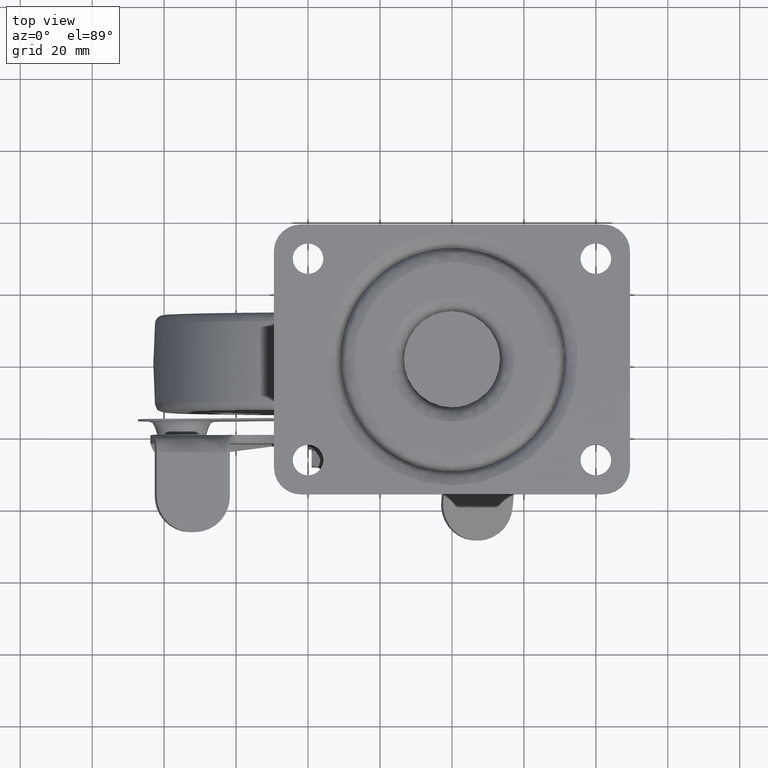
[diagram: clean part render]
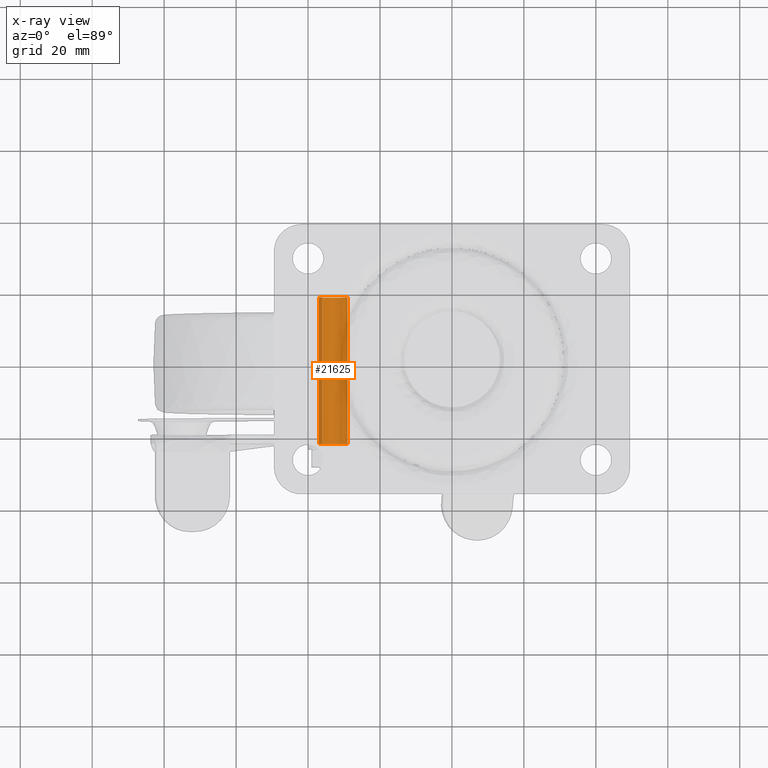
[diagram: x-ray — body ghosted, one internal face saturated and labeled with its STEP entity id]
A machine part, top view, then the same camera in x-ray: the body is ghosted and one INTERNAL B-rep face — a face not visible from any outside direction — is saturated and labeled: STEP entity #21625.
In plain terms, the highlighted face is a freeform B-spline surface patch.
Its self-contained STEP definition (entity closure, byte-faithful):
#21487=CARTESIAN_POINT('',(-30.417264588510378,-23.317933725000014,-69.946121983881184));
#21488=CARTESIAN_POINT('',(-30.329875903323774,-23.317933725000003,-70.020026941857267));
#21489=CARTESIAN_POINT('',(-30.246857051800770,-23.317933725000000,-70.098808890321948));
#21490=CARTESIAN_POINT('',(-27.346084942122630,-23.317933724999996,-72.851538838521265));
#21491=CARTESIAN_POINT('',(-30.098814890321950,-23.317933725000000,-75.752310948199408));
#21492=CARTESIAN_POINT('',(-32.851544838521278,-23.317933724999996,-78.653083057877552));
#21493=CARTESIAN_POINT('',(-35.752316948199422,-23.317933725000000,-75.900353109678235));
#21494=CARTESIAN_POINT('',(-38.653089057877551,-23.317933724999996,-73.147623161478919));
#21495=CARTESIAN_POINT('',(-35.900359109678227,-23.317933725000000,-70.246851051800775));
#21496=CARTESIAN_POINT('',(-30.417264588510378,19.460604993125003,-69.946121983881184));
#21497=CARTESIAN_POINT('',(-30.329875903323774,19.460604993125003,-70.020026941857267));
#21498=CARTESIAN_POINT('',(-30.246857051800770,19.460604993124999,-70.098808890321948));
#21499=CARTESIAN_POINT('',(-27.346084942122630,19.460604993125006,-72.851538838521265));
#21500=CARTESIAN_POINT('',(-30.098814890321950,19.460604993124999,-75.752310948199408));
#21501=CARTESIAN_POINT('',(-32.851544838521278,19.460604993125006,-78.653083057877552));
#21502=CARTESIAN_POINT('',(-35.752316948199422,19.460604993124999,-75.900353109678235));
#21503=CARTESIAN_POINT('',(-38.653089057877551,19.460604993125006,-73.147623161478919));
#21504=CARTESIAN_POINT('',(-35.900359109678227,19.460604993124999,-70.246851051800775));
#21512=(BOUNDED_SURFACE()B_SPLINE_SURFACE(2,1,((#21487,#21496),(#21488,#21497),(#21489,#21498),(#21490,#21499),(#21491,#21500),(#21492,#21501),(#21493,#21502),(#21494,#21503),(#21495,#21504)),.UNSPECIFIED.,.F.,.F.,.U.)B_SPLINE_SURFACE_WITH_KNOTS((3,2,2,2,3),(2,2),(0.0,0.265030405748802,6.890790549468830,13.516550693188860,20.142310836908891),(0.0,42.778538718125013),.UNSPECIFIED.)GEOMETRIC_REPRESENTATION_ITEM()RATIONAL_B_SPLINE_SURFACE(((0.977505800795127,0.977505800795127),(0.988284271247462,0.988284271247462),(1.0,1.0),(0.707106781186548,0.707106781186548),(1.0,1.0),(0.707106781186548,0.707106781186548),(1.0,1.0),(0.707106781186548,0.707106781186548),(1.0,1.0)))REPRESENTATION_ITEM('')SURFACE());
#21513=CARTESIAN_POINT('',(-30.417264268125951,18.417226000000021,-69.946122231132989));
#21514=VERTEX_POINT('',#21513);
#21515=CARTESIAN_POINT('',(-29.000587000000099,18.417225999999999,-72.999580926600515));
#21516=VERTEX_POINT('',#21515);
#21517=CARTESIAN_POINT('',(-30.417264268125951,18.417226000000021,-69.946122231132989));
#21518=CARTESIAN_POINT('',(-30.057760184075612,18.417225999999999,-70.249691695694850));
#21519=CARTESIAN_POINT('',(-29.518552387501320,18.417226000000049,-70.900822772283405));
#21520=CARTESIAN_POINT('',(-29.085013793036222,18.417225999999971,-71.986254547673923));
#21521=CARTESIAN_POINT('',(-29.000527495622901,18.417226000000031,-72.673859180990149));
#21522=CARTESIAN_POINT('',(-29.000587000000099,18.417225999999999,-72.999580926600515));
#21523=B_SPLINE_CURVE_WITH_KNOTS('',3,(#21517,#21518,#21519,#21520,#21521,#21522),.UNSPECIFIED.,.F.,.U.,(4,1,1,4),(0.000000222623391,1.411525781459067,2.497251290448031,3.474443897951952),.UNSPECIFIED.);
#21524=EDGE_CURVE('',#21514,#21516,#21523,.T.);
#21525=ORIENTED_EDGE('',*,*,#21524,.F.);
#21526=CARTESIAN_POINT('',(-30.417264271936791,-22.300003000000000,-69.946122227910152));
#21527=VERTEX_POINT('',#21526);
#21528=CARTESIAN_POINT('',(-30.417264271936791,-22.300003000000000,-69.946122227910152));
#21529=CARTESIAN_POINT('',(-30.417264268125951,18.417226000000021,-69.946122231132989));
#21530=QUASI_UNIFORM_CURVE('',1,(#21528,#21529),.UNSPECIFIED.,.F.,.U.);
#21531=EDGE_CURVE('',#21527,#21514,#21530,.T.);
#21532=ORIENTED_EDGE('',*,*,#21531,.F.);
#21533=CARTESIAN_POINT('',(-29.000587000000099,-22.300003000000000,-72.999580926600515));
#21534=VERTEX_POINT('',#21533);
#21535=CARTESIAN_POINT('',(-30.417264271936791,-22.300003000000000,-69.946122227910152));
#21536=CARTESIAN_POINT('',(-30.140853926787209,-22.300003000000022,-70.179755174024663));
#21537=CARTESIAN_POINT('',(-29.603157191472761,-22.300003000000000,-70.776963587714121));
#21538=CARTESIAN_POINT('',(-29.109215637694820,-22.300002999999940,-71.841425550868948));
#21539=CARTESIAN_POINT('',(-29.000505977299969,-22.300003000000100,-72.637668970365709));
#21540=CARTESIAN_POINT('',(-29.000587000000099,-22.300003000000000,-72.999580926600515));
#21541=B_SPLINE_CURVE_WITH_KNOTS('',3,(#21535,#21536,#21537,#21538,#21539,#21540),.UNSPECIFIED.,.F.,.U.,(4,1,1,4),(0.000000222624063,1.085781902374082,2.388662223198729,3.474443902943318),.UNSPECIFIED.);
#21542=EDGE_CURVE('',#21527,#21534,#21541,.T.);
#21543=ORIENTED_EDGE('',*,*,#21542,.T.);
#21544=CARTESIAN_POINT('',(-32.999587000000091,-22.300003000000000,-76.998581000000087));
#21545=VERTEX_POINT('',#21544);
#21546=CARTESIAN_POINT('',(-29.000587000000099,-22.300003000000000,-72.999580926600515));
#21547=CARTESIAN_POINT('',(-28.999828188430719,-22.300003000000011,-73.555915375144579));
#21548=CARTESIAN_POINT('',(-29.181053460442051,-22.300002999999990,-74.405915648102706));
#21549=CARTESIAN_POINT('',(-29.728211394747291,-22.300003000000011,-75.344324501500026));
#21550=CARTESIAN_POINT('',(-30.315456639275460,-22.300002999999968,-76.008569211922421));
#21551=CARTESIAN_POINT('',(-31.064623456210018,-22.300003000000121,-76.550157500952835));
#21552=CARTESIAN_POINT('',(-32.018109360358132,-22.300002999999879,-76.917848038675729));
#21553=CARTESIAN_POINT('',(-32.672421038316358,-22.300003000000050,-76.998650991547905));
#21554=CARTESIAN_POINT('',(-32.999587000000091,-22.300003000000000,-76.998581000000087));
#21555=B_SPLINE_CURVE_WITH_KNOTS('',3,(#21546,#21547,#21548,#21549,#21550,#21551,#21552,#21553,#21554),.UNSPECIFIED.,.F.,.U.,(4,1,1,1,1,1,4),(0.000000663978608,1.668602126247724,2.552015782173096,3.238942852998721,4.318693501975607,5.300260947719217,6.281772183032008),.UNSPECIFIED.);
#21556=EDGE_CURVE('',#21534,#21545,#21555,.T.);
#21557=ORIENTED_EDGE('',*,*,#21556,.T.);
#21558=CARTESIAN_POINT('',(-36.998587000000100,-22.300003000000000,-72.999581073399682));
#21559=VERTEX_POINT('',#21558);
#21560=CARTESIAN_POINT('',(-32.999587000000091,-22.300003000000000,-76.998581000000087));
#21561=CARTESIAN_POINT('',(-33.555840480763607,-22.300003000000029,-76.999255068257909));
#21562=CARTESIAN_POINT('',(-34.569634823350583,-22.300003000000011,-76.783518101332206));
#21563=CARTESIAN_POINT('',(-35.673775106834903,-22.300002999999968,-76.045624841083836));
#21564=CARTESIAN_POINT('',(-36.309307443704071,-22.300003000000022,-75.289760549494517));
#21565=CARTESIAN_POINT('',(-36.832166424306713,-22.300003000000061,-74.340547430371927));
#21566=CARTESIAN_POINT('',(-36.999239154157927,-22.300002999999901,-73.555902294536864));
#21567=CARTESIAN_POINT('',(-36.998587000000100,-22.300003000000000,-72.999581073399682));
#21568=B_SPLINE_CURVE_WITH_KNOTS('',3,(#21560,#21561,#21562,#21563,#21564,#21565,#21566,#21567),.UNSPECIFIED.,.F.,.U.,(4,1,1,1,1,4),(0.000000664073051,1.668602104352368,3.042829954037426,3.926044168719930,4.613170659972697,6.281772100291552),.UNSPECIFIED.);
#21569=EDGE_CURVE('',#21545,#21559,#21568,.T.);
#21570=ORIENTED_EDGE('',*,*,#21569,.T.);
#21571=CARTESIAN_POINT('',(-35.900358796504449,-22.300003000000000,-70.246850748405620));
#21572=VERTEX_POINT('',#21571);
#21573=CARTESIAN_POINT('',(-36.998587000000100,-22.300003000000000,-72.999581073399682));
#21574=CARTESIAN_POINT('',(-36.998727446187253,-22.300003000000011,-72.588447232230749));
#21575=CARTESIAN_POINT('',(-36.841282445014627,-22.300003000000000,-71.576400886988736));
#21576=CARTESIAN_POINT('',(-36.314841130433443,-22.300003000000011,-70.682199630206782));
#21577=CARTESIAN_POINT('',(-35.900358796504449,-22.300003000000000,-70.246850748405620));
#21578=B_SPLINE_CURVE_WITH_KNOTS('',3,(#21573,#21574,#21575,#21576,#21577),.UNSPECIFIED.,.F.,.U.,(4,1,4),(0.000000148238906,1.233458776389423,3.036185376455533),.UNSPECIFIED.);
#21579=EDGE_CURVE('',#21559,#21572,#21578,.T.);
#21580=ORIENTED_EDGE('',*,*,#21579,.T.);
#21581=CARTESIAN_POINT('',(-35.900358792759050,18.417225999999889,-70.246850744458797));
#21582=VERTEX_POINT('',#21581);
#21583=CARTESIAN_POINT('',(-35.900358796504449,-22.300003000000000,-70.246850748405620));
#21584=CARTESIAN_POINT('',(-35.900358792759050,18.417225999999889,-70.246850744458797));
#21585=QUASI_UNIFORM_CURVE('',1,(#21583,#21584),.UNSPECIFIED.,.F.,.U.);
#21586=EDGE_CURVE('',#21572,#21582,#21585,.T.);
#21587=ORIENTED_EDGE('',*,*,#21586,.T.);
#21588=CARTESIAN_POINT('',(-36.998587000000100,18.417225999999999,-72.999581073399682));
#21589=VERTEX_POINT('',#21588);
#21590=CARTESIAN_POINT('',(-36.998587000000100,18.417225999999999,-72.999581073399682));
#21591=CARTESIAN_POINT('',(-36.998748082274837,18.417225999999982,-72.588443840409667));
#21592=CARTESIAN_POINT('',(-36.841250375637330,18.417225999999950,-71.576407062837049));
#21593=CARTESIAN_POINT('',(-36.314851836542289,18.417225999999879,-70.682197164096138));
#21594=CARTESIAN_POINT('',(-35.900358792759050,18.417225999999889,-70.246850744458797));
#21595=B_SPLINE_CURVE_WITH_KNOTS('',3,(#21590,#21591,#21592,#21593,#21594),.UNSPECIFIED.,.F.,.U.,(4,1,4),(0.000000148240814,1.233458778601113,3.036185381896992),.UNSPECIFIED.);
#21596=EDGE_CURVE('',#21589,#21582,#21595,.T.);
#21597=ORIENTED_EDGE('',*,*,#21596,.F.);
#21598=CARTESIAN_POINT('',(-32.999587000000091,18.417225999999999,-76.998581000000087));
#21599=VERTEX_POINT('',#21598);
#21600=CARTESIAN_POINT('',(-32.999587000000091,18.417225999999999,-76.998581000000087));
#21601=CARTESIAN_POINT('',(-33.424915570088473,18.417225999999999,-76.998799754318711));
#21602=CARTESIAN_POINT('',(-34.308203271574918,18.417226000000010,-76.856374250684482));
#21603=CARTESIAN_POINT('',(-35.538220002627007,18.417226000000021,-76.199388846104981));
#21604=CARTESIAN_POINT('',(-36.441886350230952,18.417225999999911,-75.177171155674827));
#21605=CARTESIAN_POINT('',(-36.909815743389522,18.417226000000149,-74.046505190091352));
#21606=CARTESIAN_POINT('',(-36.998645150677831,18.417225999999811,-73.326738705537764));
#21607=CARTESIAN_POINT('',(-36.998587000000100,18.417225999999999,-72.999581073399682));
#21608=B_SPLINE_CURVE_WITH_KNOTS('',3,(#21600,#21601,#21602,#21603,#21604,#21605,#21606,#21607),.UNSPECIFIED.,.F.,.U.,(4,1,1,1,1,4),(0.000000664073051,1.275981172129227,2.650209240817150,4.122397604563783,5.300260877970386,6.281772100291552),.UNSPECIFIED.);
#21609=EDGE_CURVE('',#21599,#21589,#21608,.T.);
#21610=ORIENTED_EDGE('',*,*,#21609,.F.);
#21611=CARTESIAN_POINT('',(-29.000587000000099,18.417225999999999,-72.999580926600515));
#21612=CARTESIAN_POINT('',(-28.999828188430730,18.417226000000010,-73.555915375144579));
#21613=CARTESIAN_POINT('',(-29.181053460442040,18.417225999999982,-74.405915648102706));
#21614=CARTESIAN_POINT('',(-29.728211394747301,18.417226000000021,-75.344324501500026));
#21615=CARTESIAN_POINT('',(-30.315456639275460,18.417225999999960,-76.008569211922421));
#21616=CARTESIAN_POINT('',(-31.064623456210001,18.417226000000110,-76.550157500952835));
#21617=CARTESIAN_POINT('',(-32.018109360358132,18.417225999999900,-76.917848038675729));
#21618=CARTESIAN_POINT('',(-32.672421038316351,18.417226000000049,-76.998650991547905));
#21619=CARTESIAN_POINT('',(-32.999587000000091,18.417225999999999,-76.998581000000087));
#21620=B_SPLINE_CURVE_WITH_KNOTS('',3,(#21611,#21612,#21613,#21614,#21615,#21616,#21617,#21618,#21619),.UNSPECIFIED.,.F.,.U.,(4,1,1,1,1,1,4),(0.000000663978608,1.668602126247724,2.552015782173096,3.238942852998721,4.318693501975607,5.300260947719217,6.281772183032008),.UNSPECIFIED.);
#21621=EDGE_CURVE('',#21516,#21599,#21620,.T.);
#21622=ORIENTED_EDGE('',*,*,#21621,.F.);
#21623=EDGE_LOOP('',(#21525,#21532,#21543,#21557,#21570,#21580,#21587,#21597,#21610,#21622));
#21624=FACE_OUTER_BOUND('',#21623,.T.);
#21625=ADVANCED_FACE('',(#21624),#21512,.T.);